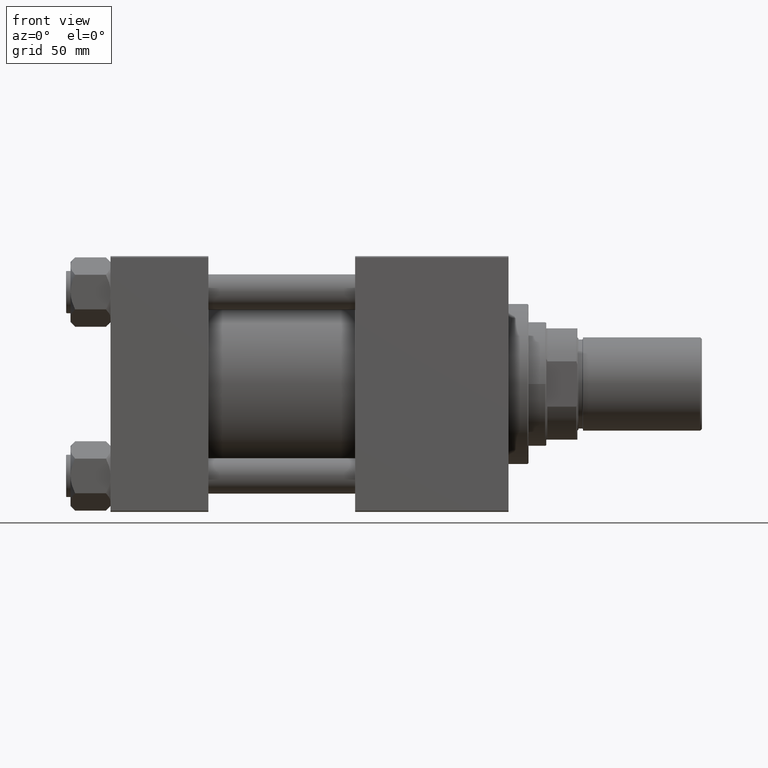
[diagram: clean part render]
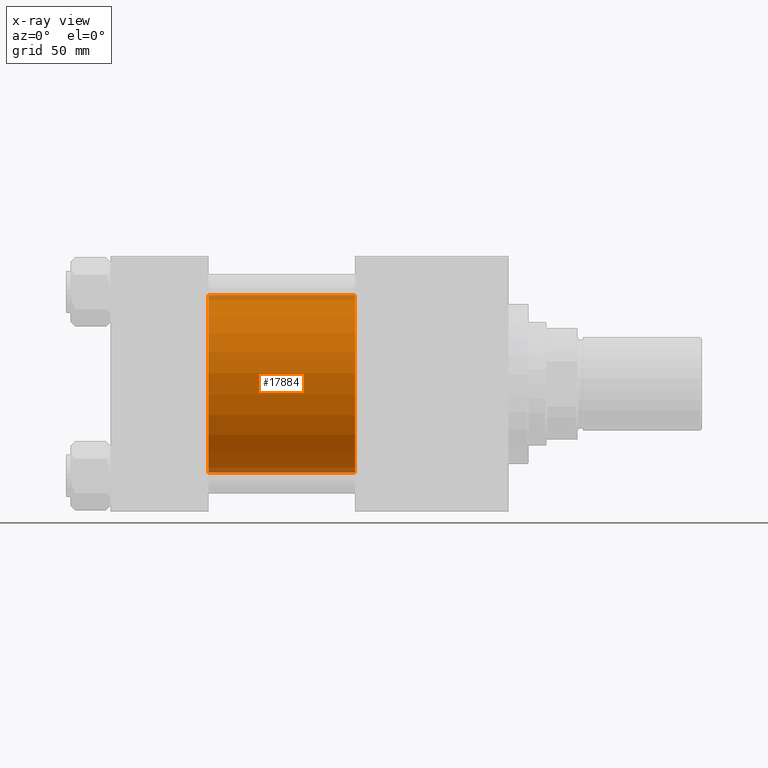
[diagram: x-ray — body ghosted, one internal face saturated and labeled with its STEP entity id]
A machine part, front view, then the same camera in x-ray: the body is ghosted and one INTERNAL B-rep face — a face not visible from any outside direction — is saturated and labeled: STEP entity #17884.
In plain terms, the highlighted cylindrical surface (partial cylindrical patch) has radius 40 mm, axis along (-1, -0, -0).
Its self-contained STEP definition (entity closure, byte-faithful):
#1348 = DIRECTION ( 'NONE',  ( 1.000000000000000000, 0.000000000000000000, 0.000000000000000000 ) ) ;
#1422 = ORIENTED_EDGE ( 'NONE', *, *, #36632, .T. ) ;
#1473 = DIRECTION ( 'NONE',  ( 1.000000000000000000, 0.000000000000000000, 0.000000000000000000 ) ) ;
#2030 = VECTOR ( 'NONE', #30522, 1000.000000000000000 ) ;
#3041 = EDGE_CURVE ( 'NONE', #19235, #42611, #18596, .T. ) ;
#4442 = CARTESIAN_POINT ( 'NONE',  ( 110.0000000000000000, 2.296501982624201990E-15, -40.00000000000000000 ) ) ;
#5122 = CARTESIAN_POINT ( 'NONE',  ( 110.0000000000000000, -2.602085213965210642E-15, 0.000000000000000000 ) ) ;
#7718 = EDGE_CURVE ( 'NONE', #19235, #33818, #41934, .T. ) ;
#9411 = ORIENTED_EDGE ( 'NONE', *, *, #7718, .T. ) ;
#12953 = CYLINDRICAL_SURFACE ( 'NONE', #29363, 40.00000000000000000 ) ;
#13408 = DIRECTION ( 'NONE',  ( 0.000000000000000000, 0.000000000000000000, -1.000000000000000000 ) ) ;
#14716 = CARTESIAN_POINT ( 'NONE',  ( 110.0000000000000000, -2.602085213965210642E-15, 40.00000000000000000 ) ) ;
#14868 = VECTOR ( 'NONE', #24384, 1000.000000000000000 ) ;
#15996 = CARTESIAN_POINT ( 'NONE',  ( 44.00000000000000000, -2.602085213965210642E-15, 40.00000000000000000 ) ) ;
#17173 = CARTESIAN_POINT ( 'NONE',  ( 44.00000000000000000, -2.602085213965210642E-15, 0.000000000000000000 ) ) ;
#17884 = ADVANCED_FACE ( 'NONE', ( #36794 ), #12953, .F. ) ;
#18596 = LINE ( 'NONE', #14716, #2030 ) ;
#19235 = VERTEX_POINT ( 'NONE', #34717 ) ;
#24139 = LINE ( 'NONE', #4442, #14868 ) ;
#24384 = DIRECTION ( 'NONE',  ( -1.000000000000000000, -0.000000000000000000, -0.000000000000000000 ) ) ;
#27330 = CARTESIAN_POINT ( 'NONE',  ( 110.0000000000000000, 2.296501982624201990E-15, -40.00000000000000000 ) ) ;
#29363 = AXIS2_PLACEMENT_3D ( 'NONE', #35776, #48210, #40686 ) ;
#30522 = DIRECTION ( 'NONE',  ( -1.000000000000000000, -0.000000000000000000, -0.000000000000000000 ) ) ;
#30621 = DIRECTION ( 'NONE',  ( 0.000000000000000000, 0.000000000000000000, -1.000000000000000000 ) ) ;
#31219 = EDGE_LOOP ( 'NONE', ( #9411, #1422, #35707, #49124 ) ) ;
#32009 = CARTESIAN_POINT ( 'NONE',  ( 44.00000000000000000, 2.296501982624201990E-15, -40.00000000000000000 ) ) ;
#33631 = AXIS2_PLACEMENT_3D ( 'NONE', #5122, #1473, #13408 ) ;
#33818 = VERTEX_POINT ( 'NONE', #27330 ) ;
#34407 = EDGE_CURVE ( 'NONE', #42611, #43775, #49695, .T. ) ;
#34717 = CARTESIAN_POINT ( 'NONE',  ( 110.0000000000000000, -2.602085213965210642E-15, 40.00000000000000000 ) ) ;
#35707 = ORIENTED_EDGE ( 'NONE', *, *, #34407, .F. ) ;
#35776 = CARTESIAN_POINT ( 'NONE',  ( 110.0000000000000000, -2.602085213965210642E-15, 0.000000000000000000 ) ) ;
#36632 = EDGE_CURVE ( 'NONE', #33818, #43775, #24139, .T. ) ;
#36794 = FACE_OUTER_BOUND ( 'NONE', #31219, .T. ) ;
#40686 = DIRECTION ( 'NONE',  ( 0.000000000000000000, 0.000000000000000000, 1.000000000000000000 ) ) ;
#41934 = CIRCLE ( 'NONE', #33631, 40.00000000000000000 ) ;
#42611 = VERTEX_POINT ( 'NONE', #15996 ) ;
#43775 = VERTEX_POINT ( 'NONE', #32009 ) ;
#46370 = AXIS2_PLACEMENT_3D ( 'NONE', #17173, #1348, #30621 ) ;
#48210 = DIRECTION ( 'NONE',  ( -1.000000000000000000, -0.000000000000000000, -0.000000000000000000 ) ) ;
#49124 = ORIENTED_EDGE ( 'NONE', *, *, #3041, .F. ) ;
#49695 = CIRCLE ( 'NONE', #46370, 40.00000000000000000 ) ;